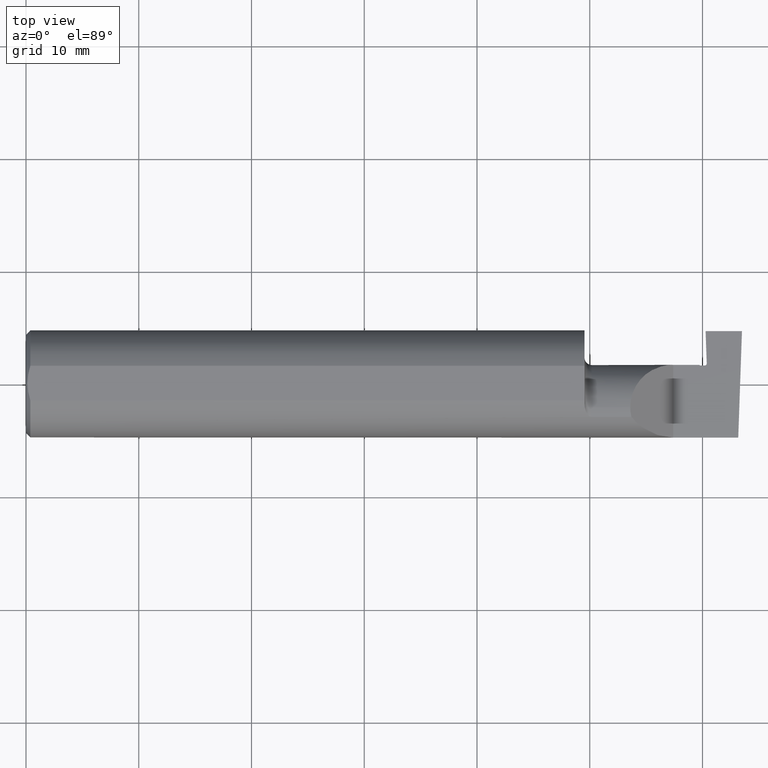
[diagram: clean part render]
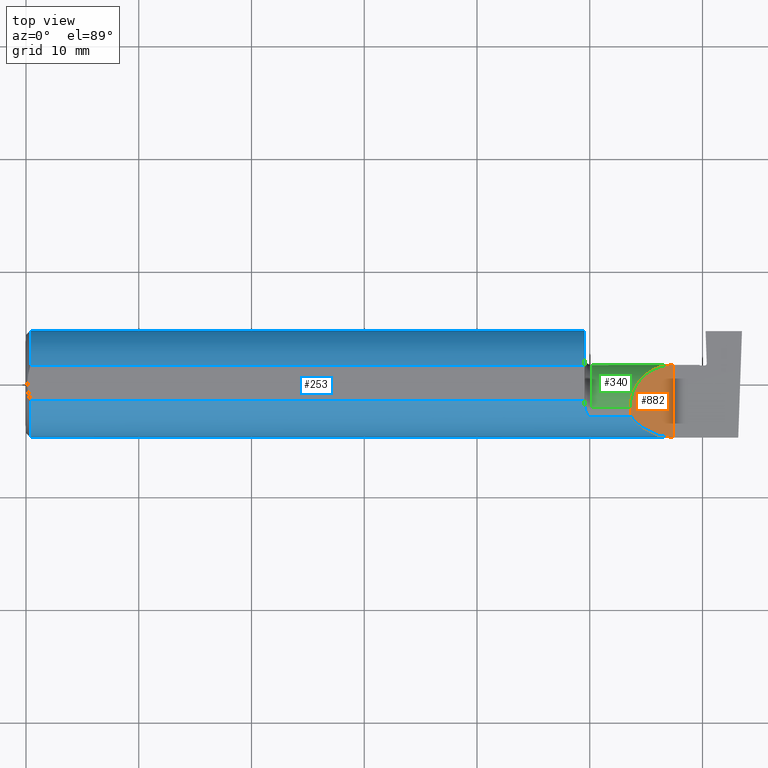
[diagram: same view with three faces highlighted in distinct colors, each labeled with its STEP entity id]
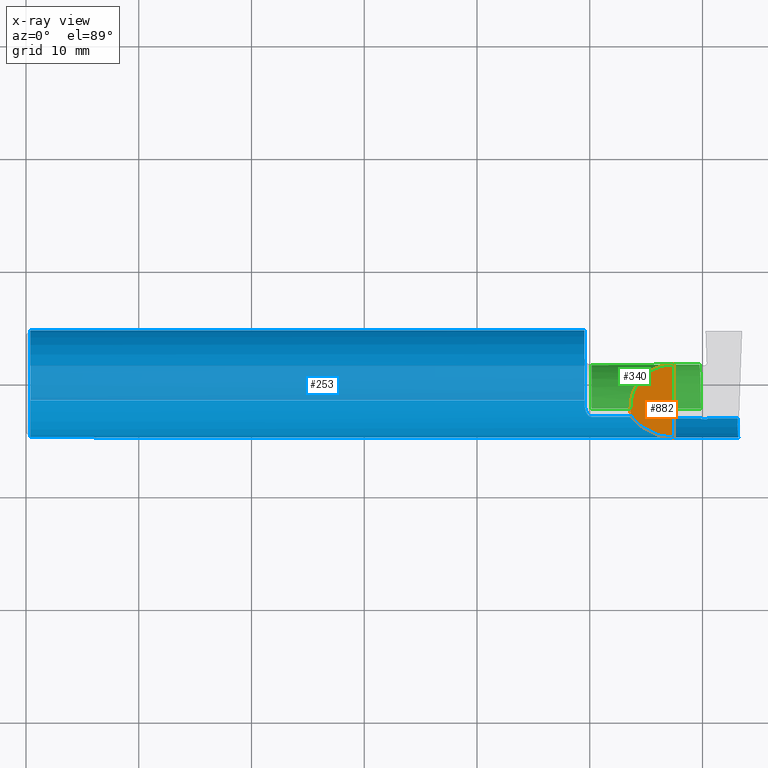
[diagram: x-ray of the same camera — body ghosted, the three highlighted faces saturated]
A machine part, top view with three faces highlighted in distinct colors.
The next image is the same camera in x-ray (body ghosted, the three faces saturated) — at least one of them is partly hidden behind the body in this view.
Their STEP definitions:

[orange] entity #882 — the highlighted planar face has unit normal (-0.7071, 0, -0.7071).
#53 = LINE ( 'NONE', #938, #879 ) ;
#55 = EDGE_CURVE ( 'NONE', #248, #829, #357, .T. ) ;
#58 = CARTESIAN_POINT ( 'NONE',  ( 2.260000000000000231, -0.1873499999999999888, 2.939152317953647352E-17 ) ) ;
#67 = CARTESIAN_POINT ( 'NONE',  ( 2.172132034355964691, 0.06665000000000001479, 0.08786796564403576149 ) ) ;
#90 =( BOUNDED_CURVE ( )  B_SPLINE_CURVE ( 3, ( #837, #422, #116, #436 ),
 .UNSPECIFIED., .F., .F. ) 
 B_SPLINE_CURVE_WITH_KNOTS ( ( 4, 4 ),
 ( 6.055147272130140479, 6.283185307179586232 ),
 .UNSPECIFIED. ) 
 CURVE ( )  GEOMETRIC_REPRESENTATION_ITEM ( )  RATIONAL_B_SPLINE_CURVE ( ( 1.000000000000000000, 0.9956712472009929815, 0.9956712472009929815, 1.000000000000000000 ) ) 
 REPRESENTATION_ITEM ( '' )  );
#116 = CARTESIAN_POINT ( 'NONE',  ( 2.110000000000000764, -0.09477667630339427218, 0.1499999999999999944 ) ) ;
#120 = AXIS2_PLACEMENT_3D ( 'NONE', #1038, #215, #541 ) ;
#200 = ORIENTED_EDGE ( 'NONE', *, *, #805, .F. ) ;
#215 = DIRECTION ( 'NONE',  ( -0.7071067811865496822, 0.000000000000000000, -0.7071067811865454633 ) ) ;
#228 = CARTESIAN_POINT ( 'NONE',  ( 2.260000000000000231, 0.06665000000000002867, 2.939152317953647352E-17 ) ) ;
#235 = CARTESIAN_POINT ( 'NONE',  ( 2.110000000000001208, -0.08334999999999996578, 0.1499999999999999944 ) ) ;
#248 = VERTEX_POINT ( 'NONE', #58 ) ;
#267 = EDGE_CURVE ( 'NONE', #248, #876, #53, .T. ) ;
#292 = FACE_OUTER_BOUND ( 'NONE', #317, .T. ) ;
#317 = EDGE_LOOP ( 'NONE', ( #200, #844, #912, #998 ) ) ;
#327 = CARTESIAN_POINT ( 'NONE',  ( 2.202189699843949189, -0.1873500000000000443, 0.05781030015605096578 ) ) ;
#357 =( BOUNDED_CURVE ( )  B_SPLINE_CURVE ( 3, ( #669, #327, #918, #754 ),
 .UNSPECIFIED., .F., .F. ) 
 B_SPLINE_CURVE_WITH_KNOTS ( ( 4, 4 ),
 ( 4.712388980384688786, 5.606916381293135743 ),
 .UNSPECIFIED. ) 
 CURVE ( )  GEOMETRIC_REPRESENTATION_ITEM ( )  RATIONAL_B_SPLINE_CURVE ( ( 1.000000000000000000, 0.9344226172588803170, 0.9344226172588803170, 1.000000000000000000 ) ) 
 REPRESENTATION_ITEM ( '' )  );
#394 = CARTESIAN_POINT ( 'NONE',  ( 2.110000000000001208, -0.08334999999999996578, 0.1499999999999999944 ) ) ;
#410 = VERTEX_POINT ( 'NONE', #235 ) ;
#422 = CARTESIAN_POINT ( 'NONE',  ( 2.111300037307155986, -0.1061291577212410964, 0.1486999626928445783 ) ) ;
#436 = CARTESIAN_POINT ( 'NONE',  ( 2.110000000000001208, -0.08334999999999996578, 0.1499999999999999944 ) ) ;
#541 = DIRECTION ( 'NONE',  ( -0.7071067811865454633, 0.000000000000000000, 0.7071067811865496822 ) ) ;
#552 = CARTESIAN_POINT ( 'NONE',  ( 2.110000000000001208, 0.004517965644035767080, 0.1500000000000000222 ) ) ;
#651 = EDGE_CURVE ( 'NONE', #410, #876, #753, .T. ) ;
#669 = CARTESIAN_POINT ( 'NONE',  ( 2.260000000000000231, -0.1873499999999999888, 2.939152317953647352E-17 ) ) ;
#678 = CARTESIAN_POINT ( 'NONE',  ( 2.113883229301070532, -0.1172600179964009143, 0.1461167706989301707 ) ) ;
#705 = PLANE ( 'NONE',  #120 ) ;
#753 =( BOUNDED_CURVE ( )  B_SPLINE_CURVE ( 3, ( #394, #552, #67, #228 ),
 .UNSPECIFIED., .F., .T. ) 
 B_SPLINE_CURVE_WITH_KNOTS ( ( 4, 4 ),
 ( 0.000000000000000000, 1.570796326794896558 ),
 .UNSPECIFIED. ) 
 CURVE ( )  GEOMETRIC_REPRESENTATION_ITEM ( )  RATIONAL_B_SPLINE_CURVE ( ( 1.000000000000000000, 0.8047378541243649375, 0.8047378541243649375, 1.000000000000000000 ) ) 
 REPRESENTATION_ITEM ( '' )  );
#754 = CARTESIAN_POINT ( 'NONE',  ( 2.113883229301070532, -0.1172600179964009143, 0.1461167706989301707 ) ) ;
#805 = EDGE_CURVE ( 'NONE', #829, #410, #90, .T. ) ;
#829 = VERTEX_POINT ( 'NONE', #678 ) ;
#837 = CARTESIAN_POINT ( 'NONE',  ( 2.113883229301070532, -0.1172600179964009143, 0.1461167706989301707 ) ) ;
#844 = ORIENTED_EDGE ( 'NONE', *, *, #55, .F. ) ;
#876 = VERTEX_POINT ( 'NONE', #940 ) ;
#879 = VECTOR ( 'NONE', #1011, 39.37007874015748143 ) ;
#882 = ADVANCED_FACE ( 'NONE', ( #292 ), #705, .F. ) ;
#912 = ORIENTED_EDGE ( 'NONE', *, *, #267, .T. ) ;
#918 = CARTESIAN_POINT ( 'NONE',  ( 2.150065971957467070, -0.1623470442677542591, 0.1099340280425335908 ) ) ;
#938 = CARTESIAN_POINT ( 'NONE',  ( 2.260000000000000231, -0.2000000000000000111, 2.939152317953647352E-17 ) ) ;
#940 = CARTESIAN_POINT ( 'NONE',  ( 2.260000000000000231, 0.06665000000000002867, 2.939152317953647352E-17 ) ) ;
#998 = ORIENTED_EDGE ( 'NONE', *, *, #651, .F. ) ;
#1011 = DIRECTION ( 'NONE',  ( -0.000000000000000000, 1.000000000000000000, -0.000000000000000000 ) ) ;
#1038 = CARTESIAN_POINT ( 'NONE',  ( 2.260000000000000231, -0.2000000000000000111, 2.939152317953647352E-17 ) ) ;

[blue] entity #253 — the highlighted cylindrical surface (partial cylindrical patch) has radius 4.7587 mm, axis along (-1, -0, -0).
#2 = DIRECTION ( 'NONE',  ( -1.000000000000000000, -0.000000000000000000, -0.000000000000000000 ) ) ;
#5 = CIRCLE ( 'NONE', #591, 0.1873499999999999888 ) ;
#6 = CARTESIAN_POINT ( 'NONE',  ( 1.974999999999999867, -0.1172600179964007477, 0.1461167706989302817 ) ) ;
#13 = EDGE_CURVE ( 'NONE', #715, #169, #250, .T. ) ;
#15 = CARTESIAN_POINT ( 'NONE',  ( 1.949999999999999956, -0.06851976604679065053, 0.1743704796142198643 ) ) ;
#22 = EDGE_CURVE ( 'NONE', #401, #49, #48, .T. ) ;
#26 = CARTESIAN_POINT ( 'NONE',  ( 1.972868998470238111, -0.1172600179964006645, -0.1461167706989303372 ) ) ;
#36 = B_SPLINE_CURVE_WITH_KNOTS ( 'NONE', 3,
 ( #710, #1019, #947, #467 ),
 .UNSPECIFIED., .F., .F.,
 ( 4, 4 ),
 ( 0.001278539404338873992, 0.001694873732696220705 ),
 .UNSPECIFIED. ) ;
#48 = CIRCLE ( 'NONE', #842, 0.1873499999999999888 ) ;
#49 = VERTEX_POINT ( 'NONE', #15 ) ;
#51 = DIRECTION ( 'NONE',  ( 1.000000000000000000, 0.000000000000000000, 0.000000000000000000 ) ) ;
#55 = EDGE_CURVE ( 'NONE', #248, #829, #357, .T. ) ;
#58 = CARTESIAN_POINT ( 'NONE',  ( 2.260000000000000231, -0.1873499999999999888, 2.939152317953647352E-17 ) ) ;
#78 = CARTESIAN_POINT ( 'NONE',  ( 1.949999999999999956, -0.06851976604679065053, -0.1743704796142198643 ) ) ;
#86 = EDGE_CURVE ( 'NONE', #169, #248, #687, .T. ) ;
#106 = CARTESIAN_POINT ( 'NONE',  ( 1.949999999999999956, 0.000000000000000000, 0.000000000000000000 ) ) ;
#119 = CARTESIAN_POINT ( 'NONE',  ( 3.749399456654646757E-32, -0.1873499999999999888, 3.061616997868384127E-16 ) ) ;
#123 = CARTESIAN_POINT ( 'NONE',  ( 2.356648243906711127, -0.1172600179964005812, -0.1461167706989303372 ) ) ;
#125 = VERTEX_POINT ( 'NONE', #420 ) ;
#134 = FACE_OUTER_BOUND ( 'NONE', #660, .T. ) ;
#143 = CARTESIAN_POINT ( 'NONE',  ( 2.372118948032565733, -0.1207982051090820269, -0.1432055458184704755 ) ) ;
#148 = CARTESIAN_POINT ( 'NONE',  ( 1.951062863587533558, -0.08334999999998812803, 0.1677879614275171183 ) ) ;
#169 = VERTEX_POINT ( 'NONE', #609 ) ;
#184 = ORIENTED_EDGE ( 'NONE', *, *, #55, .T. ) ;
#202 = CARTESIAN_POINT ( 'NONE',  ( 1.966924463282974767, -0.1152182125075826152, 0.1477647100440766248 ) ) ;
#204 = VERTEX_POINT ( 'NONE', #945 ) ;
#206 = CARTESIAN_POINT ( 'NONE',  ( 2.357567782857375782, -0.1190596369269943111, -0.1446587987439665879 ) ) ;
#224 = CARTESIAN_POINT ( 'NONE',  ( 2.370709605117606422, -0.1207136980409313221, -0.1432767448167455437 ) ) ;
#225 = EDGE_CURVE ( 'NONE', #380, #688, #344, .T. ) ;
#232 = CARTESIAN_POINT ( 'NONE',  ( 2.485494735025390867, -0.1873500000000000443, -0.05781030015605120170 ) ) ;
#241 = CARTESIAN_POINT ( 'NONE',  ( 2.380190864816944529, -0.1172600179964005812, -0.1461167706989303372 ) ) ;
#243 = CARTESIAN_POINT ( 'NONE',  ( 2.485002117657001186, -0.1623470442677541481, -0.1099340280425338545 ) ) ;
#248 = VERTEX_POINT ( 'NONE', #58 ) ;
#250 =( BOUNDED_CURVE ( )  B_SPLINE_CURVE ( 3, ( #736, #243, #232, #1042 ),
 .UNSPECIFIED., .F., .F. ) 
 B_SPLINE_CURVE_WITH_KNOTS ( ( 4, 4 ),
 ( 6.032366188922103412, 6.926893589830550368 ),
 .UNSPECIFIED. ) 
 CURVE ( )  GEOMETRIC_REPRESENTATION_ITEM ( )  RATIONAL_B_SPLINE_CURVE ( ( 1.000000000000000000, 0.9344226172588803170, 0.9344226172588803170, 1.000000000000000000 ) ) 
 REPRESENTATION_ITEM ( '' )  );
#251 = CARTESIAN_POINT ( 'NONE',  ( 1.955806801261506855, -0.1009700360460131924, -0.1578590382459146846 ) ) ;
#253 = ADVANCED_FACE ( 'NONE', ( #134 ), #368, .T. ) ;
#256 = CARTESIAN_POINT ( 'NONE',  ( 1.952380638915944600, -0.09060738690120609395, -0.1640321561807270567 ) ) ;
#277 = VERTEX_POINT ( 'NONE', #440 ) ;
#284 = CARTESIAN_POINT ( 'NONE',  ( 2.358025689463484564, -0.1199497547937959652, -0.1439169163959130027 ) ) ;
#288 = CARTESIAN_POINT ( 'NONE',  ( 1.951612951569643206, -0.08702537370779858672, -0.1659621904011591986 ) ) ;
#291 = VERTEX_POINT ( 'NONE', #363 ) ;
#305 = CARTESIAN_POINT ( 'NONE',  ( 2.358025689463484564, -0.1199497547937959652, -0.1439169163959130027 ) ) ;
#313 = EDGE_CURVE ( 'NONE', #125, #755, #668, .T. ) ;
#314 = EDGE_CURVE ( 'NONE', #49, #277, #843, .T. ) ;
#316 = LINE ( 'NONE', #802, #494 ) ;
#320 = ORIENTED_EDGE ( 'NONE', *, *, #570, .F. ) ;
#321 = VERTEX_POINT ( 'NONE', #6 ) ;
#322 = CARTESIAN_POINT ( 'NONE',  ( 2.374937653036659491, -0.1209668433626028827, -0.1430630815650477117 ) ) ;
#327 = CARTESIAN_POINT ( 'NONE',  ( 2.202189699843949189, -0.1873500000000000443, 0.05781030015605096578 ) ) ;
#334 = VECTOR ( 'NONE', #2, 39.37007874015748143 ) ;
#336 = CIRCLE ( 'NONE', #620, 0.1873499999999999888 ) ;
#341 = EDGE_CURVE ( 'NONE', #321, #829, #316, .T. ) ;
#342 = ORIENTED_EDGE ( 'NONE', *, *, #536, .F. ) ;
#344 = CIRCLE ( 'NONE', #712, 0.1873499999999999888 ) ;
#345 = LINE ( 'NONE', #487, #438 ) ;
#353 = ORIENTED_EDGE ( 'NONE', *, *, #22, .F. ) ;
#356 = CARTESIAN_POINT ( 'NONE',  ( 1.954075010165367887, -0.09778159395695855405, 0.1599914159748311859 ) ) ;
#357 =( BOUNDED_CURVE ( )  B_SPLINE_CURVE ( 3, ( #669, #327, #918, #754 ),
 .UNSPECIFIED., .F., .F. ) 
 B_SPLINE_CURVE_WITH_KNOTS ( ( 4, 4 ),
 ( 4.712388980384688786, 5.606916381293135743 ),
 .UNSPECIFIED. ) 
 CURVE ( )  GEOMETRIC_REPRESENTATION_ITEM ( )  RATIONAL_B_SPLINE_CURVE ( ( 1.000000000000000000, 0.9344226172588803170, 0.9344226172588803170, 1.000000000000000000 ) ) 
 REPRESENTATION_ITEM ( '' )  );
#359 = ORIENTED_EDGE ( 'NONE', *, *, #314, .F. ) ;
#363 = CARTESIAN_POINT ( 'NONE',  ( 1.949999999999999956, 0.06039039658754216666, 0.1773499999999999799 ) ) ;
#368 = CYLINDRICAL_SURFACE ( 'NONE', #978, 0.1873499999999999888 ) ;
#373 = ORIENTED_EDGE ( 'NONE', *, *, #870, .F. ) ;
#380 = VERTEX_POINT ( 'NONE', #658 ) ;
#387 = VERTEX_POINT ( 'NONE', #78 ) ;
#390 = EDGE_CURVE ( 'NONE', #715, #204, #571, .T. ) ;
#396 = CARTESIAN_POINT ( 'NONE',  ( 2.171499999999999986, -0.1172600179964007061, -0.1461167706989303094 ) ) ;
#401 = VERTEX_POINT ( 'NONE', #892 ) ;
#403 = CARTESIAN_POINT ( 'NONE',  ( 1.974999999999999867, -0.1172600179964006922, -0.1461167706989303094 ) ) ;
#404 = CARTESIAN_POINT ( 'NONE',  ( 1.949999999999999956, 0.000000000000000000, 0.000000000000000000 ) ) ;
#409 = CARTESIAN_POINT ( 'NONE',  ( 2.171499999999999986, -0.1172600179964007061, -0.1461167706989303094 ) ) ;
#415 = VERTEX_POINT ( 'NONE', #403 ) ;
#420 = CARTESIAN_POINT ( 'NONE',  ( 2.374937653036659491, -0.1209668433626028827, -0.1430630815650477117 ) ) ;
#426 = VERTEX_POINT ( 'NONE', #559 ) ;
#429 = CARTESIAN_POINT ( 'NONE',  ( 0.000000000000000000, 0.06039039658753697637, 0.1773499999999999799 ) ) ;
#438 = VECTOR ( 'NONE', #51, 39.37007874015748143 ) ;
#440 = CARTESIAN_POINT ( 'NONE',  ( 1.951062863587533558, -0.08334999999998812803, 0.1677879614275171183 ) ) ;
#444 = DIRECTION ( 'NONE',  ( -1.000000000000000000, -0.000000000000000000, -0.000000000000000000 ) ) ;
#445 = DIRECTION ( 'NONE',  ( 0.000000000000000000, 0.000000000000000000, 1.000000000000000000 ) ) ;
#452 = CARTESIAN_POINT ( 'NONE',  ( 2.373528297337776038, -0.1208825869133534209, -0.1431343245201633640 ) ) ;
#459 = CARTESIAN_POINT ( 'NONE',  ( 2.366481590422520487, -0.1204598949720932649, -0.1434902916532722617 ) ) ;
#467 = CARTESIAN_POINT ( 'NONE',  ( 1.949999999999999956, -0.06851976604679065053, -0.1743704796142198643 ) ) ;
#471 = ORIENTED_EDGE ( 'NONE', *, *, #1027, .F. ) ;
#476 = VECTOR ( 'NONE', #839, 39.37007874015748143 ) ;
#485 = EDGE_CURVE ( 'NONE', #939, #415, #763, .T. ) ;
#486 = CARTESIAN_POINT ( 'NONE',  ( 0.01499999999999999944, -0.06039039658753697637, 0.1773499999999999799 ) ) ;
#487 = CARTESIAN_POINT ( 'NONE',  ( 0.000000000000000000, -0.06039039658753697637, 0.1773499999999999799 ) ) ;
#490 = CARTESIAN_POINT ( 'NONE',  ( 2.377381310659129277, -0.1204592344011026495, -0.1434937920550485857 ) ) ;
#494 = VECTOR ( 'NONE', #881, 39.37007874015748143 ) ;
#495 = ORIENTED_EDGE ( 'NONE', *, *, #961, .F. ) ;
#496 = CARTESIAN_POINT ( 'NONE',  ( 2.485628535317038867, -0.1172600179964007061, -0.1461167706989303094 ) ) ;
#500 = DIRECTION ( 'NONE',  ( -1.000000000000000000, -0.000000000000000000, -0.000000000000000000 ) ) ;
#507 = B_SPLINE_CURVE_WITH_KNOTS ( 'NONE', 3,
 ( #1020, #26, #702, #742, #984, #680, #994, #251, #904, #256, #288, #752 ),
 .UNSPECIFIED., .F., .F.,
 ( 4, 2, 2, 2, 2, 4 ),
 ( 1.967976973658592312E-07, 0.0001599896235275545964, 0.0003197824493577432984, 0.0006393681010181202686, 0.0009589537526784971304, 0.001278539404338873992 ),
 .UNSPECIFIED. ) ;
#514 = ORIENTED_EDGE ( 'NONE', *, *, #695, .F. ) ;
#516 = VECTOR ( 'NONE', #500, 39.37007874015748143 ) ;
#536 = EDGE_CURVE ( 'NONE', #688, #401, #345, .T. ) ;
#539 = DIRECTION ( 'NONE',  ( -1.000000000000000000, -0.000000000000000000, -0.000000000000000000 ) ) ;
#540 = ORIENTED_EDGE ( 'NONE', *, *, #990, .F. ) ;
#549 = CARTESIAN_POINT ( 'NONE',  ( 2.362253618585349102, -0.1202052470025655045, -0.1437036836287961250 ) ) ;
#555 = VECTOR ( 'NONE', #444, 39.37007874015748143 ) ;
#556 = DIRECTION ( 'NONE',  ( 0.000000000000000000, 0.000000000000000000, -1.000000000000000000 ) ) ;
#559 = CARTESIAN_POINT ( 'NONE',  ( 0.01499999999999756042, 0.06039039658754215278, 0.1773499999999999799 ) ) ;
#563 = CARTESIAN_POINT ( 'NONE',  ( 1.950344683557281300, -0.07855153123406181936, 0.1701716388274757685 ) ) ;
#570 = EDGE_CURVE ( 'NONE', #415, #1037, #507, .T. ) ;
#571 = LINE ( 'NONE', #396, #334 ) ;
#591 = AXIS2_PLACEMENT_3D ( 'NONE', #917, #758, #764 ) ;
#598 = CARTESIAN_POINT ( 'NONE',  ( 1.951062863587533558, -0.08334999999998812803, 0.1677879614275171183 ) ) ;
#605 = ORIENTED_EDGE ( 'NONE', *, *, #86, .T. ) ;
#608 = CARTESIAN_POINT ( 'NONE',  ( 1.952158970028689655, -0.09067355718685699006, 0.1641499263364886163 ) ) ;
#609 = CARTESIAN_POINT ( 'NONE',  ( 2.487009473749072441, -0.1873499999999999055, 0.000000000000000000 ) ) ;
#612 = CARTESIAN_POINT ( 'NONE',  ( 1.961319809340845710, -0.1102629523538394690, 0.1514982751257170079 ) ) ;
#613 = CARTESIAN_POINT ( 'NONE',  ( 2.368595590597094347, -0.1205869374298264990, -0.1433835433216387456 ) ) ;
#620 = AXIS2_PLACEMENT_3D ( 'NONE', #106, #746, #986 ) ;
#621 = DIRECTION ( 'NONE',  ( 0.000000000000000000, 0.000000000000000000, 1.000000000000000000 ) ) ;
#630 = CARTESIAN_POINT ( 'NONE',  ( 2.356648243906711127, -0.1172600179964005812, -0.1461167706989303372 ) ) ;
#656 = CARTESIAN_POINT ( 'NONE',  ( 2.379687855567224286, -0.1181604634151047911, -0.1453941551805544019 ) ) ;
#658 = CARTESIAN_POINT ( 'NONE',  ( 0.01499999999999999944, 0.000000000000000000, -0.1873499999999999888 ) ) ;
#660 = EDGE_LOOP ( 'NONE', ( #732, #889, #605, #184, #885, #540, #359, #353, #342, #919, #495, #924, #514, #373, #320, #1031, #471, #721, #709 ) ) ;
#661 = CARTESIAN_POINT ( 'NONE',  ( 2.358025689463484564, -0.1199497547937959652, -0.1439169163959130027 ) ) ;
#664 = EDGE_CURVE ( 'NONE', #204, #125, #931, .T. ) ;
#668 = B_SPLINE_CURVE_WITH_KNOTS ( 'NONE', 3,
 ( #952, #452, #143, #224, #613, #459, #791, #549, #975, #305 ),
 .UNSPECIFIED., .F., .F.,
 ( 4, 3, 3, 4 ),
 ( 0.000000000000000000, 0.0001077215280025671724, 0.0002693038321446510714, 0.0004308861481014196991 ),
 .UNSPECIFIED. ) ;
#669 = CARTESIAN_POINT ( 'NONE',  ( 2.260000000000000231, -0.1873499999999999888, 2.939152317953647352E-17 ) ) ;
#678 = CARTESIAN_POINT ( 'NONE',  ( 2.113883229301070532, -0.1172600179964009143, 0.1461167706989301707 ) ) ;
#680 = CARTESIAN_POINT ( 'NONE',  ( 1.961340974786206282, -0.1102890168945986626, -0.1514792188789464422 ) ) ;
#686 = CARTESIAN_POINT ( 'NONE',  ( 1.970724556588812515, -0.1172600179964061046, 0.1461167706989260351 ) ) ;
#687 = LINE ( 'NONE', #119, #516 ) ;
#688 = VERTEX_POINT ( 'NONE', #486 ) ;
#690 = LINE ( 'NONE', #429, #555 ) ;
#695 = EDGE_CURVE ( 'NONE', #387, #291, #336, .T. ) ;
#702 = CARTESIAN_POINT ( 'NONE',  ( 1.970804171164107332, -0.1167508198888949356, -0.1465276362740037808 ) ) ;
#703 = CARTESIAN_POINT ( 'NONE',  ( 0.000000000000000000, 0.000000000000000000, 0.000000000000000000 ) ) ;
#709 = ORIENTED_EDGE ( 'NONE', *, *, #664, .F. ) ;
#710 = CARTESIAN_POINT ( 'NONE',  ( 1.951062863587535334, -0.08334999999999989639, -0.1677879614275112619 ) ) ;
#712 = AXIS2_PLACEMENT_3D ( 'NONE', #1029, #714, #621 ) ;
#714 = DIRECTION ( 'NONE',  ( -1.000000000000000000, -0.000000000000000000, -0.000000000000000000 ) ) ;
#715 = VERTEX_POINT ( 'NONE', #496 ) ;
#721 = ORIENTED_EDGE ( 'NONE', *, *, #313, .F. ) ;
#732 = ORIENTED_EDGE ( 'NONE', *, *, #390, .F. ) ;
#736 = CARTESIAN_POINT ( 'NONE',  ( 2.485628535317038867, -0.1172600179964007061, -0.1461167706989303094 ) ) ;
#740 = DIRECTION ( 'NONE',  ( 1.000000000000000000, 0.000000000000000000, 0.000000000000000000 ) ) ;
#742 = CARTESIAN_POINT ( 'NONE',  ( 1.967163414264744503, -0.1151183835841406849, -0.1478135984872520903 ) ) ;
#746 = DIRECTION ( 'NONE',  ( 1.000000000000000000, 0.000000000000000000, 0.000000000000000000 ) ) ;
#751 = CARTESIAN_POINT ( 'NONE',  ( 2.379070761296280700, -0.1190220157535173684, -0.1446881310847810964 ) ) ;
#752 = CARTESIAN_POINT ( 'NONE',  ( 1.951062863587535334, -0.08334999999999989639, -0.1677879614275112619 ) ) ;
#754 = CARTESIAN_POINT ( 'NONE',  ( 2.113883229301070532, -0.1172600179964009143, 0.1461167706989301707 ) ) ;
#755 = VERTEX_POINT ( 'NONE', #661 ) ;
#758 = DIRECTION ( 'NONE',  ( -1.000000000000000000, -0.000000000000000000, -0.000000000000000000 ) ) ;
#763 = LINE ( 'NONE', #409, #476 ) ;
#764 = DIRECTION ( 'NONE',  ( 0.000000000000000000, 0.000000000000000000, 1.000000000000000000 ) ) ;
#791 = CARTESIAN_POINT ( 'NONE',  ( 2.364367604581217641, -0.1203325709919840780, -0.1435969876371336051 ) ) ;
#802 = CARTESIAN_POINT ( 'NONE',  ( 2.171499999999999986, -0.1172600179964007061, 0.1461167706989303094 ) ) ;
#829 = VERTEX_POINT ( 'NONE', #678 ) ;
#839 = DIRECTION ( 'NONE',  ( -1.000000000000000000, -0.000000000000000000, -0.000000000000000000 ) ) ;
#842 = AXIS2_PLACEMENT_3D ( 'NONE', #404, #740, #556 ) ;
#843 = B_SPLINE_CURVE_WITH_KNOTS ( 'NONE', 3,
 ( #896, #963, #563, #148 ),
 .UNSPECIFIED., .F., .F.,
 ( 4, 4 ),
 ( 4.423516731080786679E-05, 0.0004561457252213465489 ),
 .UNSPECIFIED. ) ;
#870 = EDGE_CURVE ( 'NONE', #1037, #387, #36, .T. ) ;
#881 = DIRECTION ( 'NONE',  ( 1.000000000000000000, 0.000000000000000000, 0.000000000000000000 ) ) ;
#884 = B_SPLINE_CURVE_WITH_KNOTS ( 'NONE', 3,
 ( #598, #608, #356, #932, #612, #202, #686, #922 ),
 .UNSPECIFIED., .F., .F.,
 ( 4, 2, 2, 4 ),
 ( 0.0004561457252213464947, 0.001084815134961797638, 0.001399149839832027412, 0.001713484544702257185 ),
 .UNSPECIFIED. ) ;
#885 = ORIENTED_EDGE ( 'NONE', *, *, #341, .F. ) ;
#889 = ORIENTED_EDGE ( 'NONE', *, *, #13, .T. ) ;
#892 = CARTESIAN_POINT ( 'NONE',  ( 1.949999999999999956, -0.06039039658753699025, 0.1773499999999999799 ) ) ;
#895 = CARTESIAN_POINT ( 'NONE',  ( 2.376210723802297586, -0.1210429520010603832, -0.1429987279830746694 ) ) ;
#896 = CARTESIAN_POINT ( 'NONE',  ( 1.949999999999999956, -0.06851976604679065053, 0.1743704796142198643 ) ) ;
#904 = CARTESIAN_POINT ( 'NONE',  ( 1.954475235432781011, -0.09757364237049405420, -0.1599863467203317402 ) ) ;
#915 = EDGE_CURVE ( 'NONE', #291, #426, #690, .T. ) ;
#917 = CARTESIAN_POINT ( 'NONE',  ( 0.01499999999999999944, 0.000000000000000000, 0.000000000000000000 ) ) ;
#918 = CARTESIAN_POINT ( 'NONE',  ( 2.150065971957467070, -0.1623470442677542591, 0.1099340280425335908 ) ) ;
#919 = ORIENTED_EDGE ( 'NONE', *, *, #225, .F. ) ;
#922 = CARTESIAN_POINT ( 'NONE',  ( 1.974999999999999867, -0.1172600179964007477, 0.1461167706989302817 ) ) ;
#924 = ORIENTED_EDGE ( 'NONE', *, *, #915, .F. ) ;
#931 = B_SPLINE_CURVE_WITH_KNOTS ( 'NONE', 3,
 ( #241, #656, #751, #490, #895, #322 ),
 .UNSPECIFIED., .F., .F.,
 ( 4, 2, 4 ),
 ( 0.0002908542892681370627, 0.0003847720497468791099, 0.0004786898102256211571 ),
 .UNSPECIFIED. ) ;
#932 = CARTESIAN_POINT ( 'NONE',  ( 1.959249444250374284, -0.1073163636891283773, 0.1536158790136666341 ) ) ;
#939 = VERTEX_POINT ( 'NONE', #123 ) ;
#945 = CARTESIAN_POINT ( 'NONE',  ( 2.380190864816944529, -0.1172600179964005812, -0.1461167706989303372 ) ) ;
#947 = CARTESIAN_POINT ( 'NONE',  ( 1.949999999999999956, -0.07359296612170562746, -0.1723769398647691520 ) ) ;
#952 = CARTESIAN_POINT ( 'NONE',  ( 2.374937653036659491, -0.1209668433626028827, -0.1430630815650477117 ) ) ;
#961 = EDGE_CURVE ( 'NONE', #426, #380, #5, .T. ) ;
#963 = CARTESIAN_POINT ( 'NONE',  ( 1.949999999999999512, -0.07360907839729495528, 0.1723706084642000758 ) ) ;
#968 = CARTESIAN_POINT ( 'NONE',  ( 2.357108575368232373, -0.1181629922034711927, -0.1453921258052271737 ) ) ;
#975 = CARTESIAN_POINT ( 'NONE',  ( 2.360139646884108711, -0.1200776414883954479, -0.1438103272746146521 ) ) ;
#978 = AXIS2_PLACEMENT_3D ( 'NONE', #703, #539, #445 ) ;
#984 = CARTESIAN_POINT ( 'NONE',  ( 1.965551048069661855, -0.1140002044565611578, -0.1486821290834929865 ) ) ;
#986 = DIRECTION ( 'NONE',  ( 0.000000000000000000, 0.000000000000000000, -1.000000000000000000 ) ) ;
#990 = EDGE_CURVE ( 'NONE', #277, #321, #884, .T. ) ;
#994 = CARTESIAN_POINT ( 'NONE',  ( 1.959228130464466089, -0.1072797540790367404, -0.1536407449207395082 ) ) ;
#1016 = CARTESIAN_POINT ( 'NONE',  ( 1.951062863587535334, -0.08334999999999989639, -0.1677879614275112619 ) ) ;
#1019 = CARTESIAN_POINT ( 'NONE',  ( 1.950346246588685162, -0.07856197451716399882, -0.1701664510438046229 ) ) ;
#1020 = CARTESIAN_POINT ( 'NONE',  ( 1.974999999999999867, -0.1172600179964006922, -0.1461167706989303094 ) ) ;
#1021 = B_SPLINE_CURVE_WITH_KNOTS ( 'NONE', 3,
 ( #284, #206, #968, #630 ),
 .UNSPECIFIED., .F., .F.,
 ( 4, 4 ),
 ( 0.000000000000000000, 9.493803799528702941E-05 ),
 .UNSPECIFIED. ) ;
#1027 = EDGE_CURVE ( 'NONE', #755, #939, #1021, .T. ) ;
#1029 = CARTESIAN_POINT ( 'NONE',  ( 0.01499999999999999944, 0.000000000000000000, 0.000000000000000000 ) ) ;
#1031 = ORIENTED_EDGE ( 'NONE', *, *, #485, .F. ) ;
#1037 = VERTEX_POINT ( 'NONE', #1016 ) ;
#1042 = CARTESIAN_POINT ( 'NONE',  ( 2.487009473749072441, -0.1873499999999999055, 0.000000000000000000 ) ) ;

[green] entity #340 — the highlighted cylindrical surface (partial cylindrical patch) has radius 3.81 mm, axis along (-1, -0, -0).
#17 = LINE ( 'NONE', #428, #618 ) ;
#21 = CARTESIAN_POINT ( 'NONE',  ( 1.974999999999999867, -0.08334999999999996578, 0.000000000000000000 ) ) ;
#45 = CARTESIAN_POINT ( 'NONE',  ( 2.356802068403733408, -0.08335000000000185316, -0.1499999999999999944 ) ) ;
#67 = CARTESIAN_POINT ( 'NONE',  ( 2.172132034355964691, 0.06665000000000001479, 0.08786796564403576149 ) ) ;
#100 = VECTOR ( 'NONE', #124, 39.37007874015748143 ) ;
#124 = DIRECTION ( 'NONE',  ( -1.000000000000000000, -0.000000000000000000, -0.000000000000000000 ) ) ;
#128 = CARTESIAN_POINT ( 'NONE',  ( 2.355626808261053196, 0.008070051745373422666, -0.1193229099581186309 ) ) ;
#129 = ORIENTED_EDGE ( 'NONE', *, *, #648, .F. ) ;
#132 = EDGE_CURVE ( 'NONE', #808, #964, #603, .T. ) ;
#151 = EDGE_CURVE ( 'NONE', #410, #856, #189, .T. ) ;
#158 = ORIENTED_EDGE ( 'NONE', *, *, #498, .T. ) ;
#168 = DIRECTION ( 'NONE',  ( 0.000000000000000000, 0.000000000000000000, 1.000000000000000000 ) ) ;
#189 = LINE ( 'NONE', #272, #100 ) ;
#203 = CARTESIAN_POINT ( 'NONE',  ( 2.353917126139442040, 0.04676323683062153652, -0.07527905847017035690 ) ) ;
#228 = CARTESIAN_POINT ( 'NONE',  ( 2.260000000000000231, 0.06665000000000002867, 2.939152317953647352E-17 ) ) ;
#235 = CARTESIAN_POINT ( 'NONE',  ( 2.110000000000001208, -0.08334999999999996578, 0.1499999999999999944 ) ) ;
#237 = EDGE_CURVE ( 'NONE', #622, #808, #657, .T. ) ;
#272 = CARTESIAN_POINT ( 'NONE',  ( 1.949999999999999956, -0.08334999999999996578, 0.1499999999999999944 ) ) ;
#285 = CARTESIAN_POINT ( 'NONE',  ( 2.352486253893907087, 0.06268192306513682699, -0.03944645064871021151 ) ) ;
#290 = CARTESIAN_POINT ( 'NONE',  ( 2.356822553834048151, -0.06360488473809736143, -0.1500000000000002442 ) ) ;
#300 = CARTESIAN_POINT ( 'NONE',  ( 2.356602301954181744, -0.04414777185850969621, -0.1461247834300353488 ) ) ;
#337 = DIRECTION ( 'NONE',  ( -1.000000000000000000, -0.000000000000000000, -0.000000000000000000 ) ) ;
#340 = ADVANCED_FACE ( 'NONE', ( #386 ), #735, .T. ) ;
#386 = FACE_OUTER_BOUND ( 'NONE', #704, .T. ) ;
#394 = CARTESIAN_POINT ( 'NONE',  ( 2.110000000000001208, -0.08334999999999996578, 0.1499999999999999944 ) ) ;
#410 = VERTEX_POINT ( 'NONE', #235 ) ;
#411 = VECTOR ( 'NONE', #822, 39.37007874015748143 ) ;
#413 = CARTESIAN_POINT ( 'NONE',  ( 2.351000000000295742, 0.06664999999970497302, 1.675542791971648671E-17 ) ) ;
#428 = CARTESIAN_POINT ( 'NONE',  ( 1.949999999999999956, 0.06665000000000002867, 6.735557395310447447E-17 ) ) ;
#435 = ORIENTED_EDGE ( 'NONE', *, *, #132, .T. ) ;
#456 = ORIENTED_EDGE ( 'NONE', *, *, #237, .T. ) ;
#498 = EDGE_CURVE ( 'NONE', #876, #622, #17, .T. ) ;
#524 = CARTESIAN_POINT ( 'NONE',  ( 2.351759725398502088, 0.06664999999496633298, -0.01979752163666946563 ) ) ;
#529 = AXIS2_PLACEMENT_3D ( 'NONE', #21, #337, #921 ) ;
#530 = CARTESIAN_POINT ( 'NONE',  ( 2.356046470374700608, -0.008191954808419872267, -0.1301800712282046302 ) ) ;
#544 = CARTESIAN_POINT ( 'NONE',  ( 2.354779515171313342, 0.02964325316780150668, -0.09913905627444143109 ) ) ;
#552 = CARTESIAN_POINT ( 'NONE',  ( 2.110000000000001208, 0.004517965644035767080, 0.1500000000000000222 ) ) ;
#603 = LINE ( 'NONE', #665, #411 ) ;
#618 = VECTOR ( 'NONE', #821, 39.37007874015748143 ) ;
#622 = VERTEX_POINT ( 'NONE', #413 ) ;
#637 = CIRCLE ( 'NONE', #529, 0.1499999999999999944 ) ;
#640 = AXIS2_PLACEMENT_3D ( 'NONE', #720, #888, #168 ) ;
#648 = EDGE_CURVE ( 'NONE', #856, #964, #637, .T. ) ;
#651 = EDGE_CURVE ( 'NONE', #410, #876, #753, .T. ) ;
#657 = B_SPLINE_CURVE_WITH_KNOTS ( 'NONE', 3,
 ( #868, #524, #285, #933, #203, #787, #544, #782, #128, #530, #851, #300, #290, #1035 ),
 .UNSPECIFIED., .F., .F.,
 ( 4, 2, 2, 2, 2, 2, 4 ),
 ( 0.000000000000000000, 0.001502809950118478384, 0.002254214925177718334, 0.003005619900236958068, 0.003757024875296199103, 0.004508429850355439271, 0.006011239800473920473 ),
 .UNSPECIFIED. ) ;
#665 = CARTESIAN_POINT ( 'NONE',  ( 1.949999999999999956, -0.08334999999999995191, -0.1499999999999999944 ) ) ;
#704 = EDGE_LOOP ( 'NONE', ( #456, #435, #129, #798, #1013, #158 ) ) ;
#720 = CARTESIAN_POINT ( 'NONE',  ( 1.949999999999999956, -0.08334999999999996578, 0.000000000000000000 ) ) ;
#735 = CYLINDRICAL_SURFACE ( 'NONE', #640, 0.1499999999999999944 ) ;
#753 =( BOUNDED_CURVE ( )  B_SPLINE_CURVE ( 3, ( #394, #552, #67, #228 ),
 .UNSPECIFIED., .F., .T. ) 
 B_SPLINE_CURVE_WITH_KNOTS ( ( 4, 4 ),
 ( 0.000000000000000000, 1.570796326794896558 ),
 .UNSPECIFIED. ) 
 CURVE ( )  GEOMETRIC_REPRESENTATION_ITEM ( )  RATIONAL_B_SPLINE_CURVE ( ( 1.000000000000000000, 0.8047378541243649375, 0.8047378541243649375, 1.000000000000000000 ) ) 
 REPRESENTATION_ITEM ( '' )  );
#772 = CARTESIAN_POINT ( 'NONE',  ( 1.974999999999999867, -0.08334999999999996578, 0.1499999999999999944 ) ) ;
#782 = CARTESIAN_POINT ( 'NONE',  ( 2.355342065342904245, 0.01578456973343042233, -0.1129971894526468762 ) ) ;
#787 = CARTESIAN_POINT ( 'NONE',  ( 2.354501696844006453, 0.03584078263305223722, -0.09159666139121683259 ) ) ;
#798 = ORIENTED_EDGE ( 'NONE', *, *, #151, .F. ) ;
#808 = VERTEX_POINT ( 'NONE', #45 ) ;
#821 = DIRECTION ( 'NONE',  ( 1.000000000000000000, 0.000000000000000000, 0.000000000000000000 ) ) ;
#822 = DIRECTION ( 'NONE',  ( -1.000000000000000000, -0.000000000000000000, -0.000000000000000000 ) ) ;
#851 = CARTESIAN_POINT ( 'NONE',  ( 2.356194501908411620, -0.01680791226147468689, -0.1347941664736700129 ) ) ;
#856 = VERTEX_POINT ( 'NONE', #772 ) ;
#868 = CARTESIAN_POINT ( 'NONE',  ( 2.351000000000295742, 0.06664999999970497302, 1.675542791971648671E-17 ) ) ;
#876 = VERTEX_POINT ( 'NONE', #940 ) ;
#888 = DIRECTION ( 'NONE',  ( -1.000000000000000000, -0.000000000000000000, -0.000000000000000000 ) ) ;
#921 = DIRECTION ( 'NONE',  ( 0.000000000000000000, 0.000000000000000000, 1.000000000000000000 ) ) ;
#933 = CARTESIAN_POINT ( 'NONE',  ( 2.353584322644831861, 0.05145648400323409033, -0.06650224151415214113 ) ) ;
#937 = CARTESIAN_POINT ( 'NONE',  ( 1.974999999999999867, -0.08334999999999995191, -0.1499999999999999944 ) ) ;
#940 = CARTESIAN_POINT ( 'NONE',  ( 2.260000000000000231, 0.06665000000000002867, 2.939152317953647352E-17 ) ) ;
#964 = VERTEX_POINT ( 'NONE', #937 ) ;
#1013 = ORIENTED_EDGE ( 'NONE', *, *, #651, .T. ) ;
#1035 = CARTESIAN_POINT ( 'NONE',  ( 2.356802068403733408, -0.08335000000000185316, -0.1499999999999999944 ) ) ;